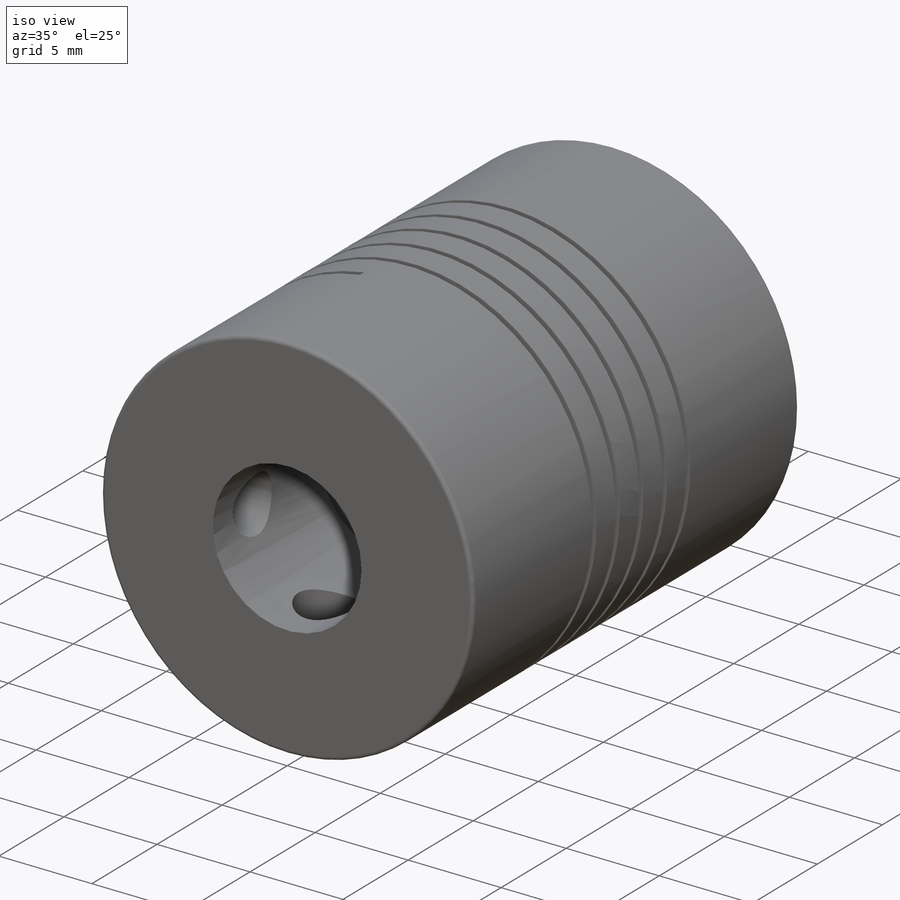
[diagram: iso view]
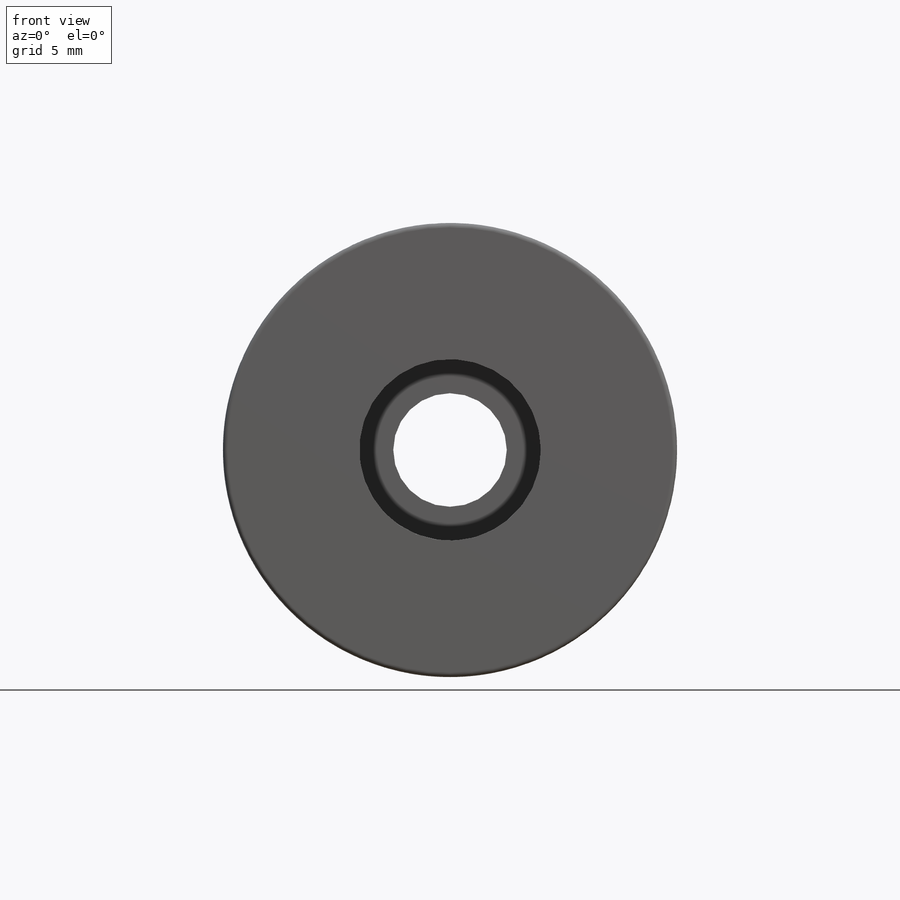
[diagram: front view]
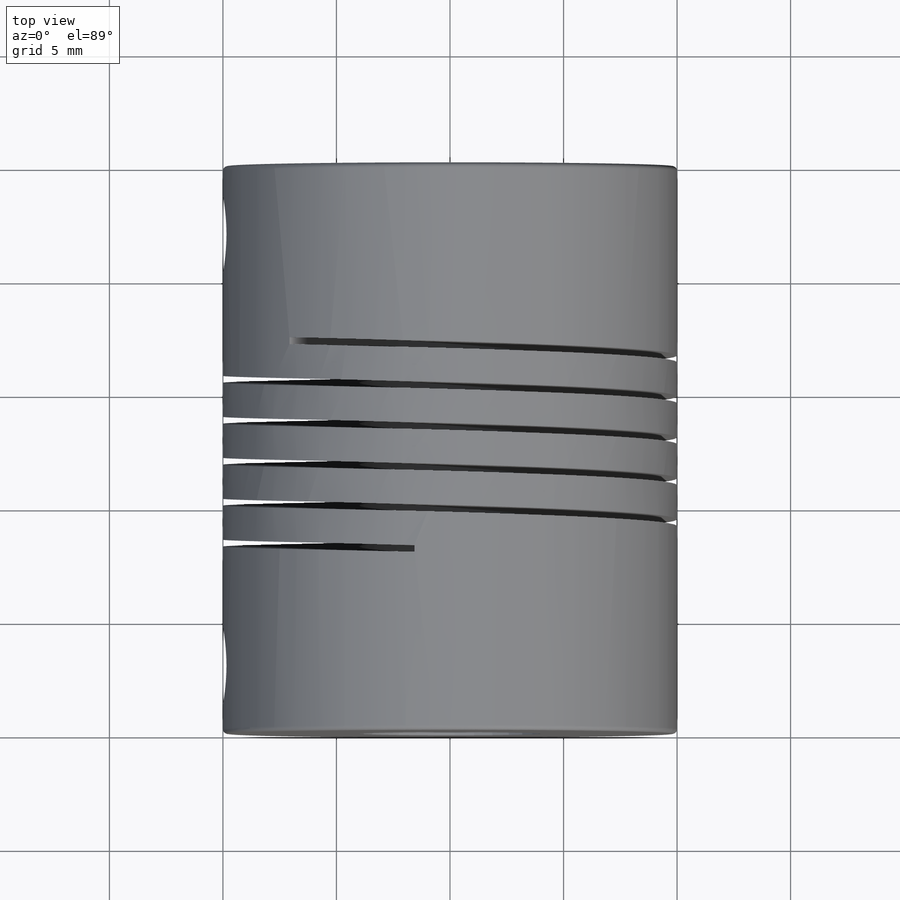
[diagram: top view]
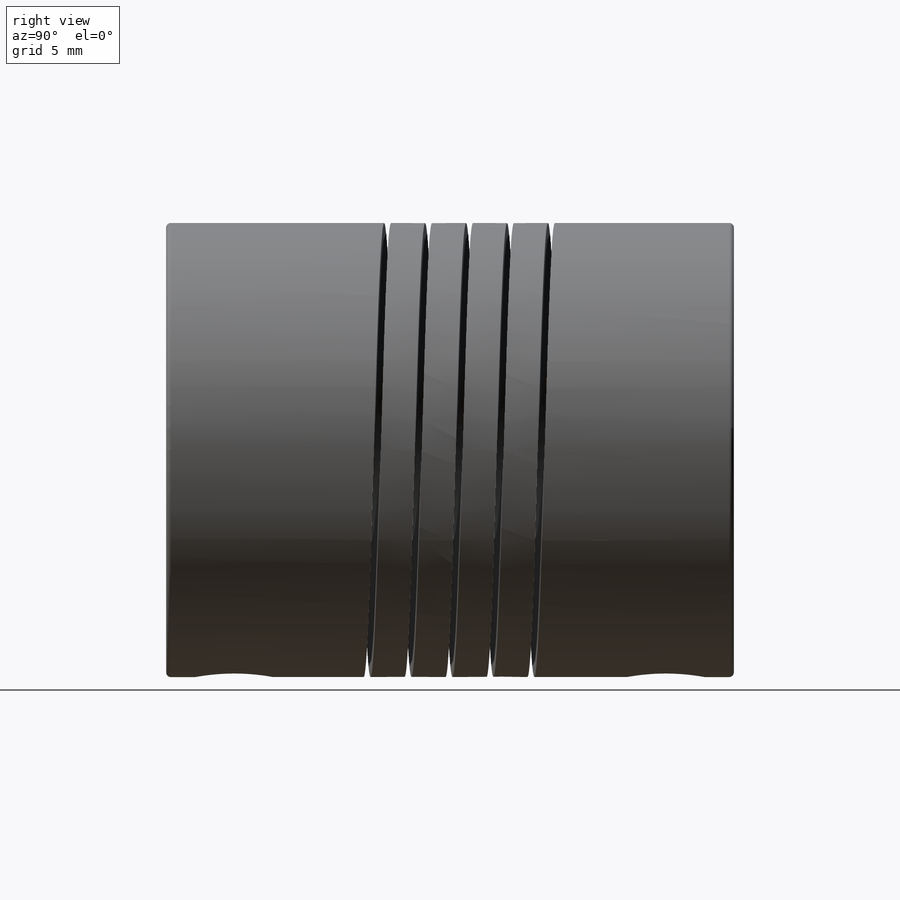
[diagram: right view]
SOLIDWORKS PART (.sldprt)
format: sldprt  version: not decoded by parser v0  size: 572,416 bytes
history: native  units: mm
features: sketch x9, cut_extrude x5, plane x4, chamfer x3, fillet x2, material x1, extrude x1, helix x1, sweep x1 (+8 scaffold rows collapsed)
feature tree (35):
  scaffold x8  (default folders/planes/origin — collapsed)
  material  "6063-O"
  plane  "Alzado"
  plane  "Planta"
  plane  "Vista lateral"
  sketch  "Croquis1"  dims[D1=20.0mm]
  extrude  "Saliente-Extruir1"  Depth=25mm
  sketch  "Croquis2"  dims[D1=~2.738336mm]
  cut_extrude  "Cortar-Extruir1"  Depth=25mm
  sketch  "Croquis3"  dims[D1=20.0mm]
  plane  "Plano1"  Offset=6mm
  sketch  "Croquis7"  dims[D1=22.5mm]
  helix  "Hélice/Espiral2"  Pitch=9.2mm
  sketch  "Croquis10"  dims[D1=0.3mm D2=~11.413899mm D3=15.4mm]
  sweep  "Cortar-Barrer12"
  fillet  "Redondeo1"  Radius=0.2mm
  fillet  "Redondeo3"  Radius=0.2mm
  chamfer  "Chaflán1"  Distance=0.1mm Angle=45deg
  sketch  "Croquis11"  dims[D1=3.0mm D2=3.0mm]
  cut_extrude  "Cortar-Extruir2"  Depth=160mm
  sketch  "Croquis12"  dims[D1=3.0mm D2=22.0mm]
  cut_extrude  "Cortar-Extruir4"  Depth=160mm
  chamfer  "Chaflán3"  Distance=0.3mm Angle=45deg
  sketch  "Croquis13"  dims[D1=8.0mm]
  cut_extrude  "Cortar-Extruir5"  Depth=18mm
  sketch  "Croquis14"  dims[D1=3.0mm D2=3.0mm D3=3.0mm D4=3.0mm]
  cut_extrude  "Cortar-Extruir6"  Depth=18mm
  chamfer  "Chaflán5"  Distance=0.3mm Angle=45deg
decode coverage: 21 of 22 modeling features carry decoded parameters
note: ~ marks probable driven/reference dimensions
note: suppression state not decoded; provenance and decode notes live in map.json
